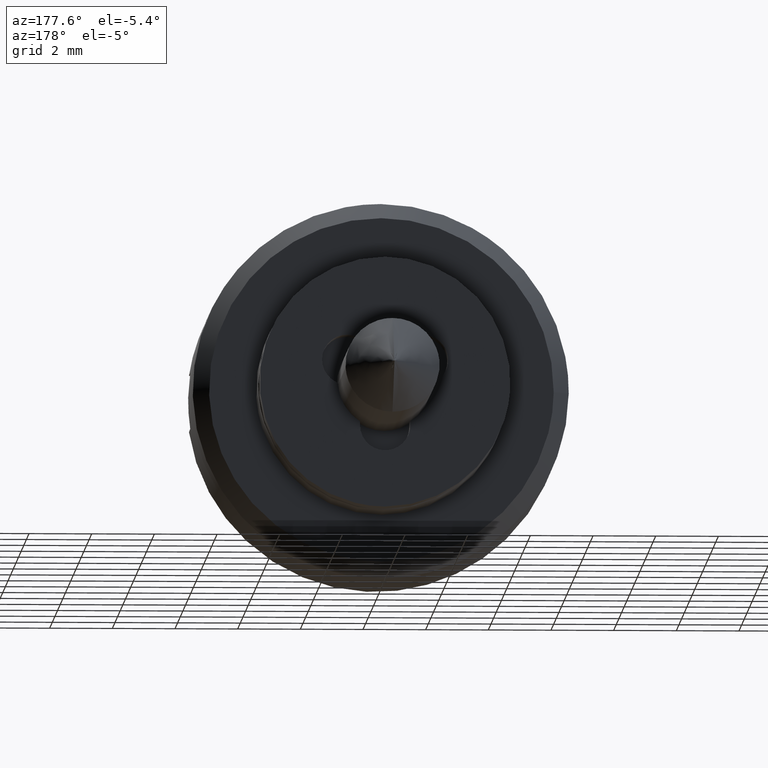
[diagram: clean part render]
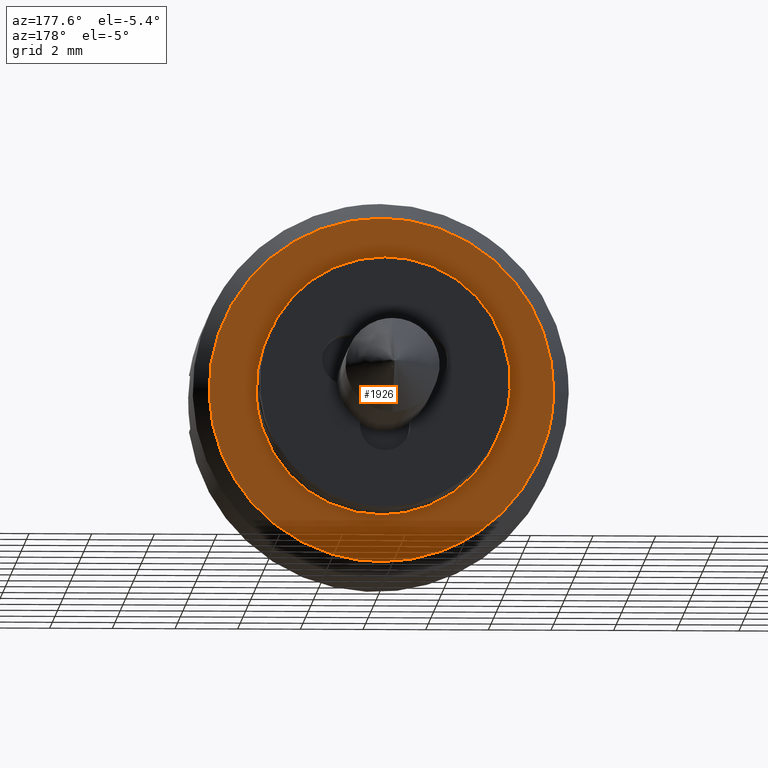
[diagram: same view with one face highlighted and labeled with its STEP entity id]
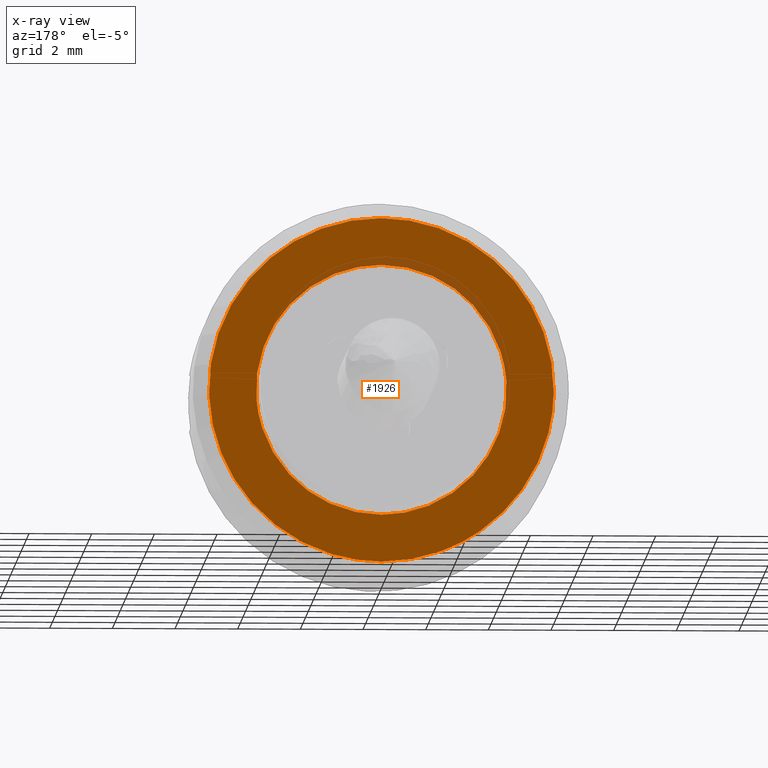
[diagram: x-ray of the same camera — body ghosted, the highlighted face saturated]
A machine part, auxiliary view. The second image highlights one B-rep face of the part: STEP entity #1926.
The next image is the same camera in x-ray: the body ghosted, the highlighted face saturated — about 5% of this face is hidden behind the body in this view.
In plain terms, the highlighted face is a freeform B-spline surface patch.
Its self-contained STEP definition (entity closure, byte-faithful):
#1282=CARTESIAN_POINT('',(-2.000000000000234,3.156915148686318,-4.503763619906774));
#1283=VERTEX_POINT('',#1282);
#1289=CARTESIAN_POINT('',(-2.000000000000030,0.0,-5.499999999999837));
#1290=VERTEX_POINT('',#1289);
#1291=CARTESIAN_POINT('',(-2.000000000000030,0.0,-5.499999999999837));
#1292=CARTESIAN_POINT('',(-2.000000000000030,1.735650099053719,-5.499999999999836));
#1293=CARTESIAN_POINT('',(-2.000000000000234,3.156915148686318,-4.503763619906774));
#1301=(BOUNDED_CURVE()B_SPLINE_CURVE(2,(#1291,#1292,#1293),.UNSPECIFIED.,.F.,.U.)B_SPLINE_CURVE_WITH_KNOTS((3,3),(0.0,0.098673726203145),.UNSPECIFIED.)CURVE()GEOMETRIC_REPRESENTATION_ITEM()RATIONAL_B_SPLINE_CURVE((1.0,0.884396538880175,0.860049271925738))REPRESENTATION_ITEM(''));
#1302=EDGE_CURVE('',#1290,#1283,#1301,.T.);
#1304=CARTESIAN_POINT('',(-2.000000000000030,0.0,5.500000000000163));
#1305=VERTEX_POINT('',#1304);
#1306=CARTESIAN_POINT('',(-2.000000000000030,0.0,5.500000000000163));
#1307=CARTESIAN_POINT('',(-2.000000000000029,-5.500000000000001,5.500000000000163));
#1308=CARTESIAN_POINT('',(-2.000000000000030,-5.500000000000000,1.634248E-013));
#1309=CARTESIAN_POINT('',(-2.000000000000029,-5.500000000000001,-5.499999999999837));
#1310=CARTESIAN_POINT('',(-2.000000000000030,0.0,-5.499999999999837));
#1318=(BOUNDED_CURVE()B_SPLINE_CURVE(2,(#1306,#1307,#1308,#1309,#1310),.UNSPECIFIED.,.F.,.U.)B_SPLINE_CURVE_WITH_KNOTS((3,2,3),(0.500000000000000,0.750000000000000,1.0),.UNSPECIFIED.)CURVE()GEOMETRIC_REPRESENTATION_ITEM()RATIONAL_B_SPLINE_CURVE((1.0,0.707106781186548,1.0,0.707106781186548,1.0))REPRESENTATION_ITEM(''));
#1319=EDGE_CURVE('',#1305,#1290,#1318,.T.);
#1321=CARTESIAN_POINT('',(-2.000000000002476,5.499790576855245,-0.047995945258940));
#1322=VERTEX_POINT('',#1321);
#1323=CARTESIAN_POINT('',(-2.000000000002477,5.499790576855245,-0.047995945258940));
#1324=CARTESIAN_POINT('',(-2.000000000000030,5.500000000000000,-0.023998429531722));
#1325=CARTESIAN_POINT('',(-2.000000000000030,5.500000000000000,1.634248E-013));
#1326=CARTESIAN_POINT('',(-2.000000000000029,5.500000000000001,5.500000000000163));
#1327=CARTESIAN_POINT('',(-2.000000000000030,0.0,5.500000000000163));
#1335=(BOUNDED_CURVE()B_SPLINE_CURVE(2,(#1323,#1324,#1325,#1326,#1327),.UNSPECIFIED.,.F.,.U.)B_SPLINE_CURVE_WITH_KNOTS((3,2,3),(0.248460105663858,0.250000000000000,0.500000000000000),.UNSPECIFIED.)CURVE()GEOMETRIC_REPRESENTATION_ITEM()RATIONAL_B_SPLINE_CURVE((0.996414028097734,0.998195901565019,1.0,0.707106781186548,1.0))REPRESENTATION_ITEM(''));
#1336=EDGE_CURVE('',#1322,#1305,#1335,.T.);
#1438=CARTESIAN_POINT('',(-2.000000000000234,3.156915148686319,-4.503763619906775));
#1439=CARTESIAN_POINT('',(-2.000000000000030,5.475086169857724,-2.878840592941163));
#1440=CARTESIAN_POINT('',(-2.000000000002476,5.499790576855245,-0.047995945258940));
#1448=(BOUNDED_CURVE()B_SPLINE_CURVE(2,(#1438,#1439,#1440),.UNSPECIFIED.,.F.,.U.)B_SPLINE_CURVE_WITH_KNOTS((3,3),(0.098673726203145,0.248460105663858),.UNSPECIFIED.)CURVE()GEOMETRIC_REPRESENTATION_ITEM()RATIONAL_B_SPLINE_CURVE((0.860049271925738,0.823090203821219,0.996414028097733))REPRESENTATION_ITEM(''));
#1449=EDGE_CURVE('',#1283,#1322,#1448,.T.);
#1473=CARTESIAN_POINT('',(-2.0,0.0,-3.999999999999837));
#1474=VERTEX_POINT('',#1473);
#1475=CARTESIAN_POINT('',(-2.000000000000041,-3.987669625792396,-0.313832687142181));
#1476=VERTEX_POINT('',#1475);
#1477=CARTESIAN_POINT('',(-2.0,0.0,-3.999999999999837));
#1478=CARTESIAN_POINT('',(-2.000000000000000,-3.697565404128436,-3.999999999999837));
#1479=CARTESIAN_POINT('',(-2.000000000000041,-3.987669625792397,-0.313832687142181));
#1487=(BOUNDED_CURVE()B_SPLINE_CURVE(2,(#1477,#1478,#1479),.UNSPECIFIED.,.F.,.U.)B_SPLINE_CURVE_WITH_KNOTS((3,3),(0.0,0.236331459508875),.UNSPECIFIED.)CURVE()GEOMETRIC_REPRESENTATION_ITEM()RATIONAL_B_SPLINE_CURVE((1.0,0.723120472470258,0.969723687734370))REPRESENTATION_ITEM(''));
#1488=EDGE_CURVE('',#1474,#1476,#1487,.T.);
#1490=CARTESIAN_POINT('',(-2.000000000000041,3.987669625792396,0.313832687142508));
#1491=VERTEX_POINT('',#1490);
#1492=CARTESIAN_POINT('',(-2.000000000000041,3.987669625792397,0.313832687142508));
#1493=CARTESIAN_POINT('',(-2.000000000000000,4.000000000000001,0.157158571571045));
#1494=CARTESIAN_POINT('',(-2.0,4.0,1.634248E-013));
#1495=CARTESIAN_POINT('',(-2.000000000000000,4.000000000000000,-3.999999999999837));
#1496=CARTESIAN_POINT('',(-2.0,0.0,-3.999999999999837));
#1504=(BOUNDED_CURVE()B_SPLINE_CURVE(2,(#1492,#1493,#1494,#1495,#1496),.UNSPECIFIED.,.F.,.U.)B_SPLINE_CURVE_WITH_KNOTS((3,2,3),(0.736331459508875,0.750000000000000,1.0),.UNSPECIFIED.)CURVE()GEOMETRIC_REPRESENTATION_ITEM()RATIONAL_B_SPLINE_CURVE((0.969723687734370,0.983986308716290,1.0,0.707106781186548,1.0))REPRESENTATION_ITEM(''));
#1505=EDGE_CURVE('',#1491,#1474,#1504,.T.);
#1541=CARTESIAN_POINT('',(-2.0,0.0,4.000000000000163));
#1542=VERTEX_POINT('',#1541);
#1543=CARTESIAN_POINT('',(-2.000000000000041,-3.987669625792397,-0.313832687142181));
#1544=CARTESIAN_POINT('',(-2.000000000000000,-4.0,-0.157158571570718));
#1545=CARTESIAN_POINT('',(-2.0,-4.0,1.634248E-013));
#1546=CARTESIAN_POINT('',(-2.000000000000000,-4.000000000000000,4.000000000000164));
#1547=CARTESIAN_POINT('',(-2.0,0.0,4.000000000000163));
#1555=(BOUNDED_CURVE()B_SPLINE_CURVE(2,(#1543,#1544,#1545,#1546,#1547),.UNSPECIFIED.,.F.,.U.)B_SPLINE_CURVE_WITH_KNOTS((3,2,3),(0.236331459508875,0.250000000000000,0.500000000000000),.UNSPECIFIED.)CURVE()GEOMETRIC_REPRESENTATION_ITEM()RATIONAL_B_SPLINE_CURVE((0.969723687734370,0.983986308716290,1.0,0.707106781186548,1.0))REPRESENTATION_ITEM(''));
#1556=EDGE_CURVE('',#1476,#1542,#1555,.T.);
#1563=CARTESIAN_POINT('',(-2.0,0.0,4.000000000000163));
#1564=CARTESIAN_POINT('',(-2.000000000000000,3.697565404128435,4.000000000000163));
#1565=CARTESIAN_POINT('',(-2.000000000000041,3.987669625792397,0.313832687142508));
#1573=(BOUNDED_CURVE()B_SPLINE_CURVE(2,(#1563,#1564,#1565),.UNSPECIFIED.,.F.,.U.)B_SPLINE_CURVE_WITH_KNOTS((3,3),(0.500000000000000,0.736331459508875),.UNSPECIFIED.)CURVE()GEOMETRIC_REPRESENTATION_ITEM()RATIONAL_B_SPLINE_CURVE((1.0,0.723120472470258,0.969723687734370))REPRESENTATION_ITEM(''));
#1574=EDGE_CURVE('',#1542,#1491,#1573,.T.);
#1909=CARTESIAN_POINT('',(-2.000000000000030,-6.049439524952617,-6.049449978679703));
#1910=CARTESIAN_POINT('',(-2.000000000000030,6.049230536166873,-6.049449978679703));
#1911=CARTESIAN_POINT('',(-2.000000000000030,-6.049439524952616,6.049450273723021));
#1912=CARTESIAN_POINT('',(-2.000000000000030,6.049230536166873,6.049450273723021));
#1913=B_SPLINE_SURFACE_WITH_KNOTS('',1,1,((#1909,#1911),(#1910,#1912)),.UNSPECIFIED.,.F.,.F.,.U.,(2,2),(2,2),(0.0,12.098670061119490),(0.0,12.098900252402720),.UNSPECIFIED.);
#1914=ORIENTED_EDGE('',*,*,#1302,.T.);
#1915=ORIENTED_EDGE('',*,*,#1449,.T.);
#1916=ORIENTED_EDGE('',*,*,#1336,.T.);
#1917=ORIENTED_EDGE('',*,*,#1319,.T.);
#1918=EDGE_LOOP('',(#1914,#1915,#1916,#1917));
#1919=FACE_OUTER_BOUND('',#1918,.T.);
#1920=ORIENTED_EDGE('',*,*,#1574,.T.);
#1921=ORIENTED_EDGE('',*,*,#1505,.T.);
#1922=ORIENTED_EDGE('',*,*,#1488,.T.);
#1923=ORIENTED_EDGE('',*,*,#1556,.T.);
#1924=EDGE_LOOP('',(#1920,#1921,#1922,#1923));
#1925=FACE_BOUND('',#1924,.T.);
#1926=ADVANCED_FACE('',(#1919,#1925),#1913,.T.);